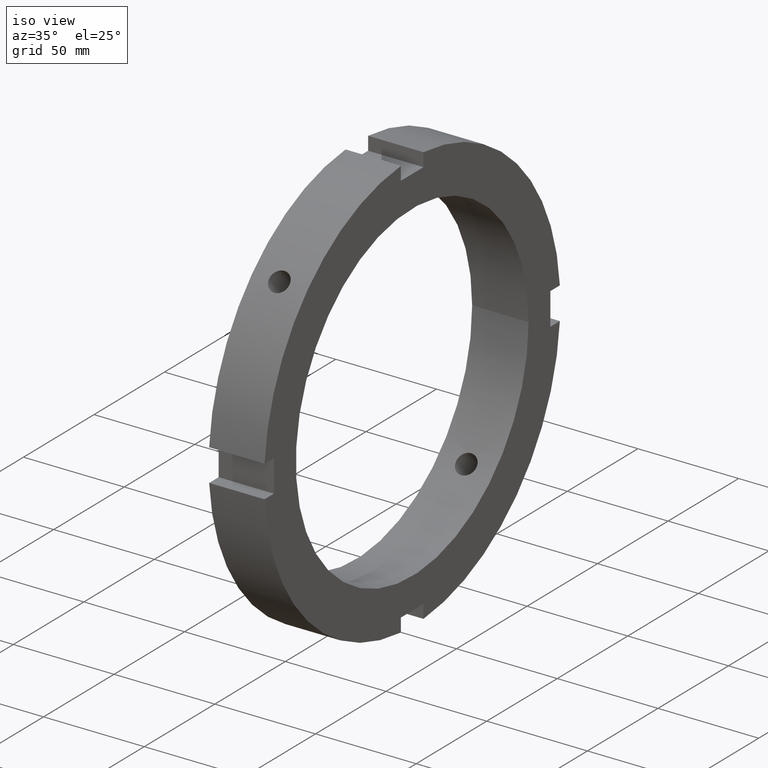
[diagram: clean part render]
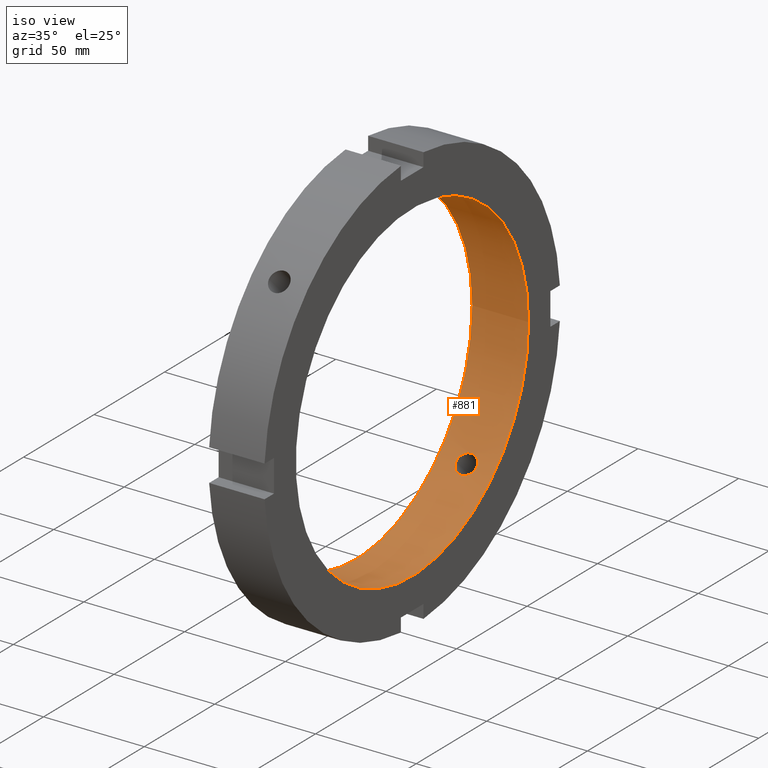
[diagram: same view with one face highlighted and labeled with its STEP entity id]
A machine part, iso view. The second image highlights one B-rep face of the part: STEP entity #881.
In plain terms, the highlighted cylindrical surface (bore or boss wall) has radius 82.5 mm, axis along (1, 0, 0).
Its self-contained STEP definition (entity closure, byte-faithful):
#114=CARTESIAN_POINT('',(13.999999999999984,-61.799796458943028,54.653775328271806));
#115=VERTEX_POINT('',#114);
#116=CARTESIAN_POINT('',(13.999999999999982,-61.799796458943035,54.653775328271799));
#117=CARTESIAN_POINT('',(14.634636503591043,-61.799796458943035,54.653775328271799));
#118=CARTESIAN_POINT('',(15.311465976716379,-61.715811288933523,54.749204049515470));
#119=CARTESIAN_POINT('',(16.556373717305529,-61.371805777459798,55.134545999874973));
#120=CARTESIAN_POINT('',(17.124465468554892,-61.111493423138761,55.424154863935549));
#121=CARTESIAN_POINT('',(18.021555448516050,-60.504653517412628,56.085991774539480));
#122=CARTESIAN_POINT('',(18.410408633911970,-60.117588178289274,56.502329630394854));
#123=CARTESIAN_POINT('',(18.926135302708381,-59.257946035617820,57.403253337009758));
#124=CARTESIAN_POINT('',(19.052999999999983,-58.785065009467310,57.887553886313015));
#125=CARTESIAN_POINT('',(19.052999999999983,-57.887553886313007,58.785065009467331));
#126=CARTESIAN_POINT('',(18.926135302708381,-57.403253337009744,59.257946035617842));
#127=CARTESIAN_POINT('',(18.410408633911970,-56.502329630394854,60.117588178289296));
#128=CARTESIAN_POINT('',(18.021555448516050,-56.085991774539480,60.504653517412635));
#129=CARTESIAN_POINT('',(17.124465468554892,-55.424154863935527,61.111493423138768));
#130=CARTESIAN_POINT('',(16.556373717305515,-55.134545999874973,61.371805777459805));
#131=CARTESIAN_POINT('',(15.311465976716367,-54.749204049515470,61.715811288933537));
#132=CARTESIAN_POINT('',(14.634636503591045,-54.653775328271799,61.799796458943028));
#133=CARTESIAN_POINT('',(13.365363496408925,-54.653775328271799,61.799796458943028));
#134=CARTESIAN_POINT('',(12.688534023283600,-54.749204049515470,61.715811288933537));
#135=CARTESIAN_POINT('',(11.443626282694449,-55.134545999874973,61.371805777459805));
#136=CARTESIAN_POINT('',(10.875534531445076,-55.424154863935527,61.111493423138768));
#137=CARTESIAN_POINT('',(9.978444551483921,-56.085991774539480,60.504653517412635));
#138=CARTESIAN_POINT('',(9.589591366087998,-56.502329630394854,60.117588178289274));
#139=CARTESIAN_POINT('',(9.073864697291588,-57.403253337009744,59.257946035617827));
#140=CARTESIAN_POINT('',(8.946999999999985,-57.887553886313007,58.785065009467331));
#141=CARTESIAN_POINT('',(8.946999999999983,-58.785065009467317,57.887553886313015));
#142=CARTESIAN_POINT('',(9.073864697291587,-59.257946035617820,57.403253337009744));
#143=CARTESIAN_POINT('',(9.589591366088001,-60.117588178289267,56.502329630394854));
#144=CARTESIAN_POINT('',(9.978444551483916,-60.504653517412628,56.085991774539480));
#145=CARTESIAN_POINT('',(10.875534531445075,-61.111493423138761,55.424154863935549));
#146=CARTESIAN_POINT('',(11.443626282694439,-61.371805777459798,55.134545999874973));
#147=CARTESIAN_POINT('',(12.688534023283589,-61.715811288933523,54.749204049515470));
#148=CARTESIAN_POINT('',(13.365363496408925,-61.799796458943035,54.653775328271799));
#149=CARTESIAN_POINT('',(13.999999999999986,-61.799796458943035,54.653775328271799));
#150=B_SPLINE_CURVE_WITH_KNOTS('',3,(#116,#117,#118,#119,#120,#121,#122,#123,#124,#125,#126,#127,#128,#129,#130,#131,#132,#133,#134,#135,#136,#137,#138,#139,#140,#141,#142,#143,#144,#145,#146,#147,#148,#149),.UNSPECIFIED.,.T.,.U.,(4,2,2,2,2,2,2,2,2,2,2,2,2,2,2,2,4),(0.0,0.190390951077318,0.380781902154637,0.571172762566467,0.761563622978297,0.951954483390127,1.142345343801958,1.332736294879276,1.523127245956594,1.713518197033912,1.903909148111231,2.094300008523061,2.284690868934891,2.475081729346721,2.665472589758551,2.855863540835870,3.046254491913188),.UNSPECIFIED.);
#151=EDGE_CURVE('',#115,#115,#150,.T.);
#202=CARTESIAN_POINT('',(13.999999999999984,54.653775328271792,-61.799796458943035));
#203=VERTEX_POINT('',#202);
#204=CARTESIAN_POINT('',(13.999999999999982,54.653775328271792,-61.799796458943050));
#205=CARTESIAN_POINT('',(13.365363496408921,54.653775328271792,-61.799796458943050));
#206=CARTESIAN_POINT('',(12.688534023283601,54.749204049515470,-61.715811288933537));
#207=CARTESIAN_POINT('',(11.443626282694455,55.134545999874973,-61.371805777459805));
#208=CARTESIAN_POINT('',(10.875534531445080,55.424154863935527,-61.111493423138782));
#209=CARTESIAN_POINT('',(9.978444551483921,56.085991774539480,-60.504653517412635));
#210=CARTESIAN_POINT('',(9.589591366087996,56.502329630394854,-60.117588178289296));
#211=CARTESIAN_POINT('',(9.073864697291587,57.403253337009744,-59.257946035617842));
#212=CARTESIAN_POINT('',(8.946999999999985,57.887553886313007,-58.785065009467331));
#213=CARTESIAN_POINT('',(8.946999999999983,58.785065009467317,-57.887553886313015));
#214=CARTESIAN_POINT('',(9.073864697291587,59.257946035617820,-57.403253337009744));
#215=CARTESIAN_POINT('',(9.589591366088001,60.117588178289267,-56.502329630394854));
#216=CARTESIAN_POINT('',(9.978444551483916,60.504653517412628,-56.085991774539480));
#217=CARTESIAN_POINT('',(10.875534531445073,61.111493423138761,-55.424154863935549));
#218=CARTESIAN_POINT('',(11.443626282694439,61.371805777459798,-55.134545999874973));
#219=CARTESIAN_POINT('',(12.688534023283591,61.715811288933523,-54.749204049515470));
#220=CARTESIAN_POINT('',(13.365363496408921,61.799796458943028,-54.653775328271806));
#221=CARTESIAN_POINT('',(14.634636503591047,61.799796458943028,-54.653775328271806));
#222=CARTESIAN_POINT('',(15.311465976716370,61.715811288933523,-54.749204049515477));
#223=CARTESIAN_POINT('',(16.556373717305519,61.371805777459798,-55.134545999874980));
#224=CARTESIAN_POINT('',(17.124465468554892,61.111493423138761,-55.424154863935549));
#225=CARTESIAN_POINT('',(18.021555448516050,60.504653517412628,-56.085991774539480));
#226=CARTESIAN_POINT('',(18.410408633911970,60.117588178289274,-56.502329630394854));
#227=CARTESIAN_POINT('',(18.926135302708381,59.257946035617820,-57.403253337009758));
#228=CARTESIAN_POINT('',(19.052999999999983,58.785065009467310,-57.887553886313015));
#229=CARTESIAN_POINT('',(19.052999999999983,57.887553886313007,-58.785065009467331));
#230=CARTESIAN_POINT('',(18.926135302708381,57.403253337009744,-59.257946035617842));
#231=CARTESIAN_POINT('',(18.410408633911970,56.502329630394854,-60.117588178289296));
#232=CARTESIAN_POINT('',(18.021555448516050,56.085991774539480,-60.504653517412635));
#233=CARTESIAN_POINT('',(17.124465468554892,55.424154863935527,-61.111493423138782));
#234=CARTESIAN_POINT('',(16.556373717305515,55.134545999874973,-61.371805777459805));
#235=CARTESIAN_POINT('',(15.311465976716365,54.749204049515470,-61.715811288933537));
#236=CARTESIAN_POINT('',(14.634636503591047,54.653775328271792,-61.799796458943050));
#237=CARTESIAN_POINT('',(13.999999999999986,54.653775328271792,-61.799796458943050));
#238=B_SPLINE_CURVE_WITH_KNOTS('',3,(#204,#205,#206,#207,#208,#209,#210,#211,#212,#213,#214,#215,#216,#217,#218,#219,#220,#221,#222,#223,#224,#225,#226,#227,#228,#229,#230,#231,#232,#233,#234,#235,#236,#237),.UNSPECIFIED.,.T.,.U.,(4,2,2,2,2,2,2,2,2,2,2,2,2,2,2,2,4),(0.0,0.190390951077318,0.380781902154636,0.571172762566467,0.761563622978297,0.951954483390127,1.142345343801957,1.332736294879275,1.523127245956594,1.713518197033912,1.903909148111231,2.094300008523061,2.284690868934892,2.475081729346722,2.665472589758552,2.855863540835870,3.046254491913189),.UNSPECIFIED.);
#239=EDGE_CURVE('',#203,#203,#238,.T.);
#712=CARTESIAN_POINT('',(27.999999999999986,82.500000000000000,0.0));
#713=VERTEX_POINT('',#712);
#714=CARTESIAN_POINT('',(27.999999999999986,0.0,0.0));
#715=DIRECTION('',(1.0,0.0,0.0));
#716=DIRECTION('',(0.0,1.0,0.0));
#717=AXIS2_PLACEMENT_3D('',#714,#715,#716);
#718=CIRCLE('',#717,82.500000000000000);
#719=EDGE_CURVE('',#713,#713,#718,.T.);
#805=CARTESIAN_POINT('',(-2.436388E-014,82.500000000000000,0.0));
#806=VERTEX_POINT('',#805);
#807=CARTESIAN_POINT('',(-2.436419E-014,0.0,0.0));
#808=DIRECTION('',(1.0,0.0,0.0));
#809=DIRECTION('',(0.0,1.0,0.0));
#810=AXIS2_PLACEMENT_3D('',#807,#808,#809);
#811=CIRCLE('',#810,82.500000000000000);
#812=EDGE_CURVE('',#806,#806,#811,.T.);
#864=CARTESIAN_POINT('',(13.999999999999982,0.0,0.0));
#865=DIRECTION('',(1.0,0.0,0.0));
#866=DIRECTION('',(0.0,1.0,0.0));
#867=AXIS2_PLACEMENT_3D('',#864,#865,#866);
#868=CYLINDRICAL_SURFACE('',#867,82.500000000000000);
#869=ORIENTED_EDGE('',*,*,#812,.F.);
#870=EDGE_LOOP('',(#869));
#871=FACE_OUTER_BOUND('',#870,.T.);
#872=ORIENTED_EDGE('',*,*,#151,.T.);
#873=EDGE_LOOP('',(#872));
#874=FACE_BOUND('',#873,.T.);
#875=ORIENTED_EDGE('',*,*,#239,.T.);
#876=EDGE_LOOP('',(#875));
#877=FACE_BOUND('',#876,.T.);
#878=ORIENTED_EDGE('',*,*,#719,.T.);
#879=EDGE_LOOP('',(#878));
#880=FACE_BOUND('',#879,.T.);
#881=ADVANCED_FACE('',(#871,#874,#877,#880),#868,.F.);